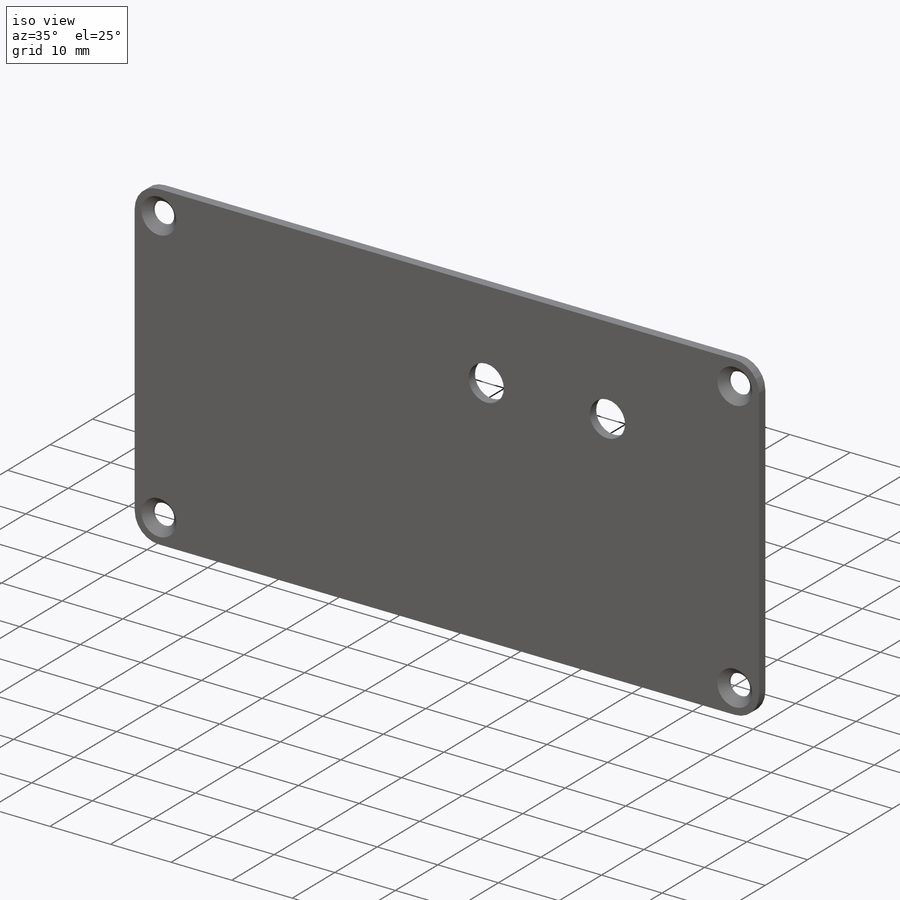
[diagram: iso view]
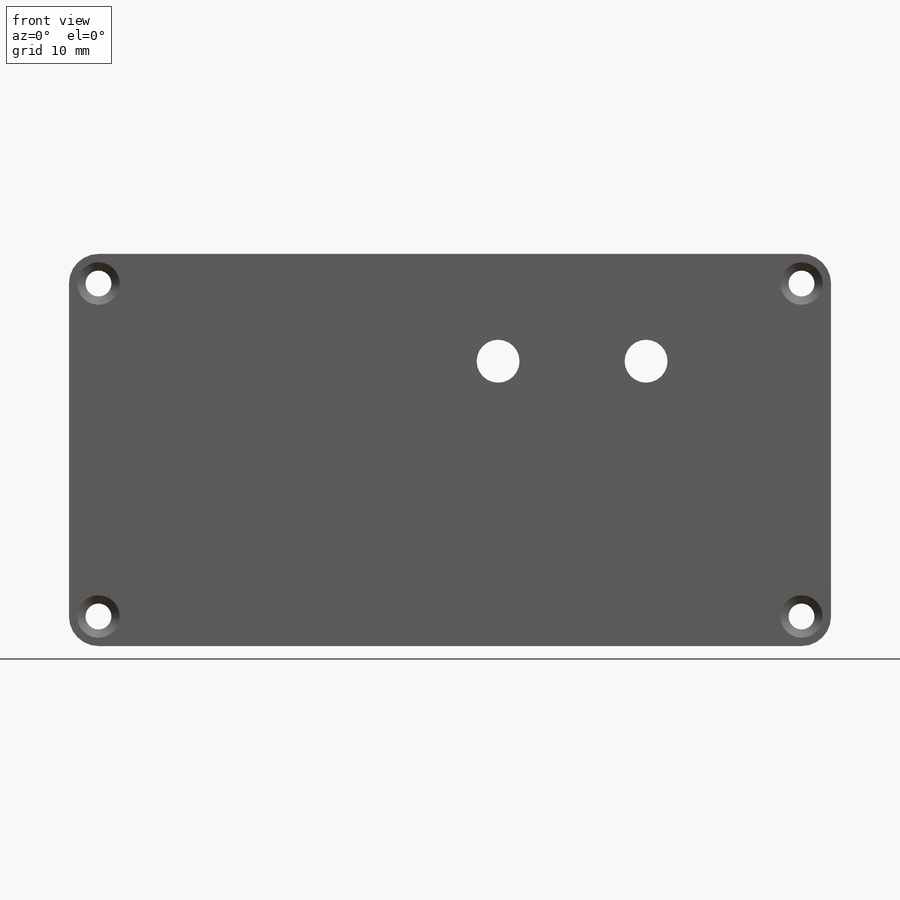
[diagram: front view]
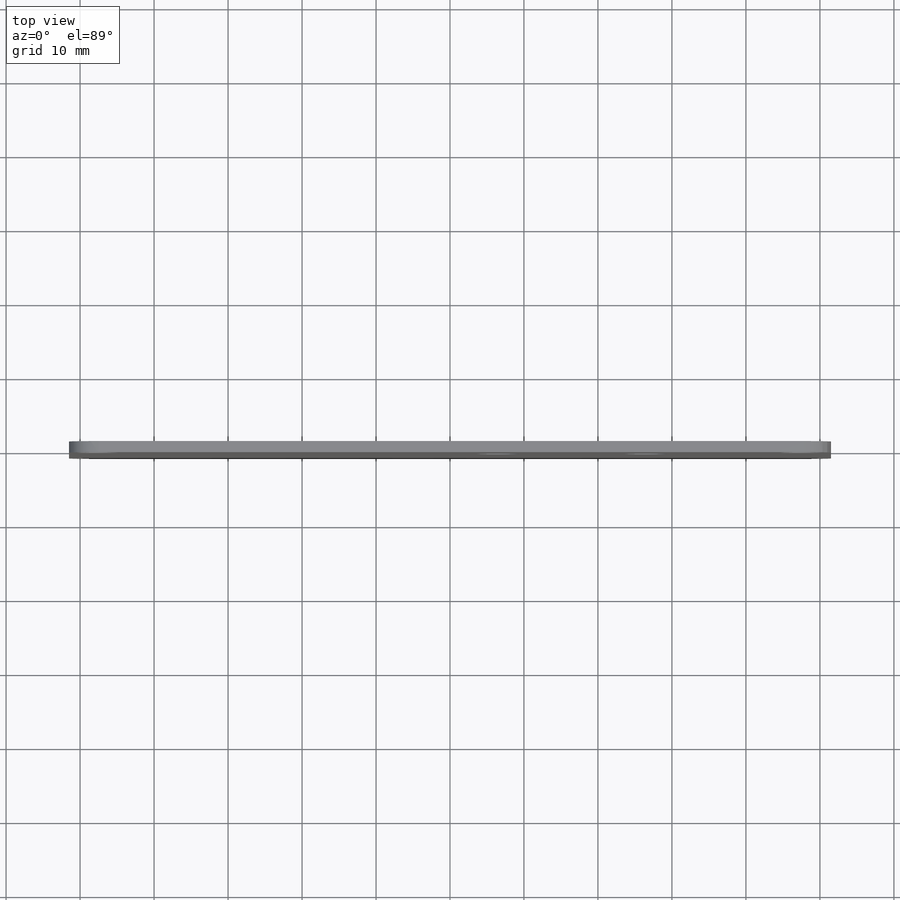
[diagram: top view]
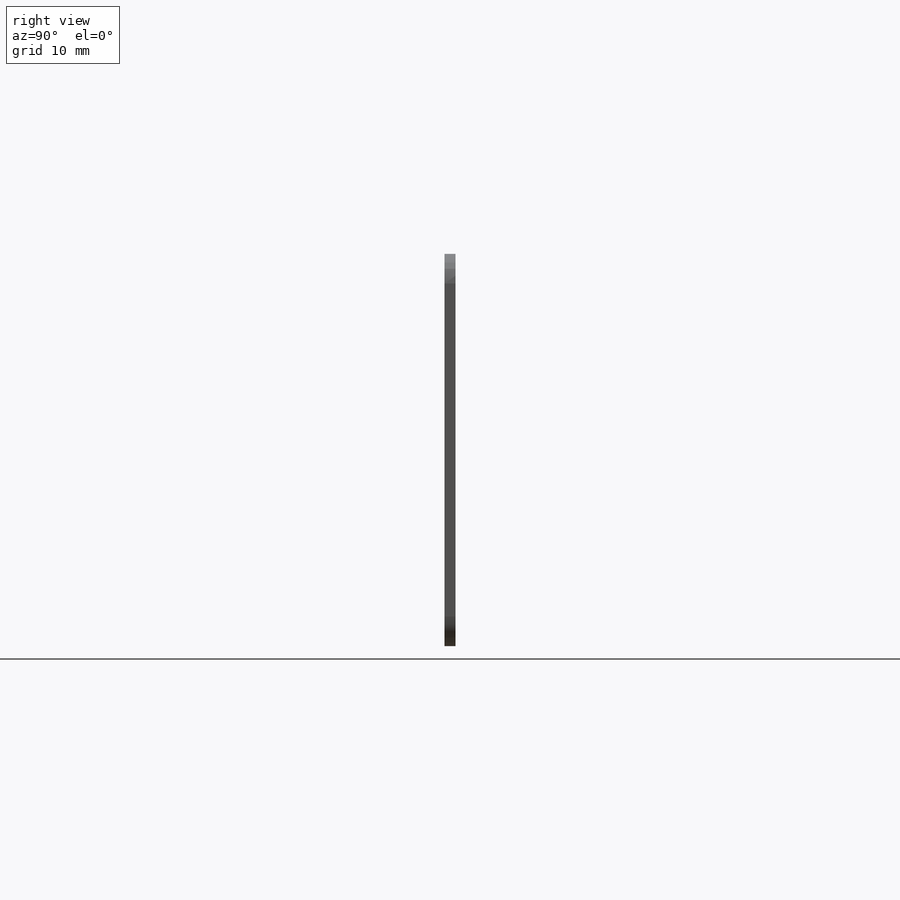
[diagram: right view]
SOLIDWORKS PART (.sldprt)
format: sldprt  version: not decoded by parser v0  size: 191,488 bytes
history: native  units: mm
features: plane x4, sketch x4, material x1, extrude x1, hole x1, fillet x1, cut_extrude x1 (+8 scaffold rows collapsed)
feature tree (21):
  scaffold x8  (default folders/planes/origin — collapsed)
  material  "Material <not specified>"
  plane  "Plan de face"
  plane  "Plan de dessus"
  plane  "Plan de droite"
  plane  "Plan1"
  sketch  "Esquisse1"
  extrude  "Boss.-Extru.1"  Depth=1.5mm
  hole  "Fraisage pour vis à tête fraisée M31"  Diameter=3.5mm Depth=1.5mm
  sketch  "Esquisse3"
  sketch  "Esquisse2"  dims[hole-wizard template sketch: 54 standard entries collapsed; hole parameters kept: c17.Diamètre du perçage jusqu'au prochain=3.5mm c17.Profondeur du perçage jusqu'au prochain=1.5mm c17.Diamètre du fraisage entrant=5.75mm c17.D4=~3.666174mm c17.Angle du fraisage entrant=90.0deg]
  fillet  "Congé1"  Radius=3.99mm
  sketch  "Esquisse4"  dims[c1.D1=5.8mm c1.D3=9.0mm c1.D2=25.0mm c2.D3=12.0mm c2.D4=20.0mm c2.D2=25.0mm]
  cut_extrude  "Enlèv. mat.-Extru.1"  [1 undecoded]
decode coverage: 5 of 8 modeling features carry decoded parameters
note: ~ marks probable driven/reference dimensions
note: 1 parameter value undecoded
note: suppression state not decoded; provenance and decode notes live in map.json
